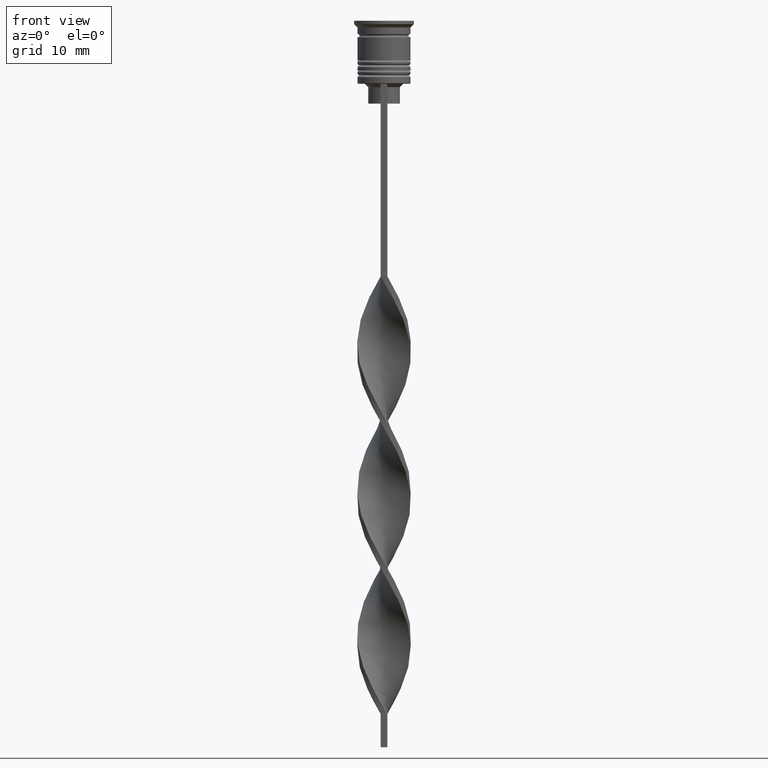
[diagram: clean part render]
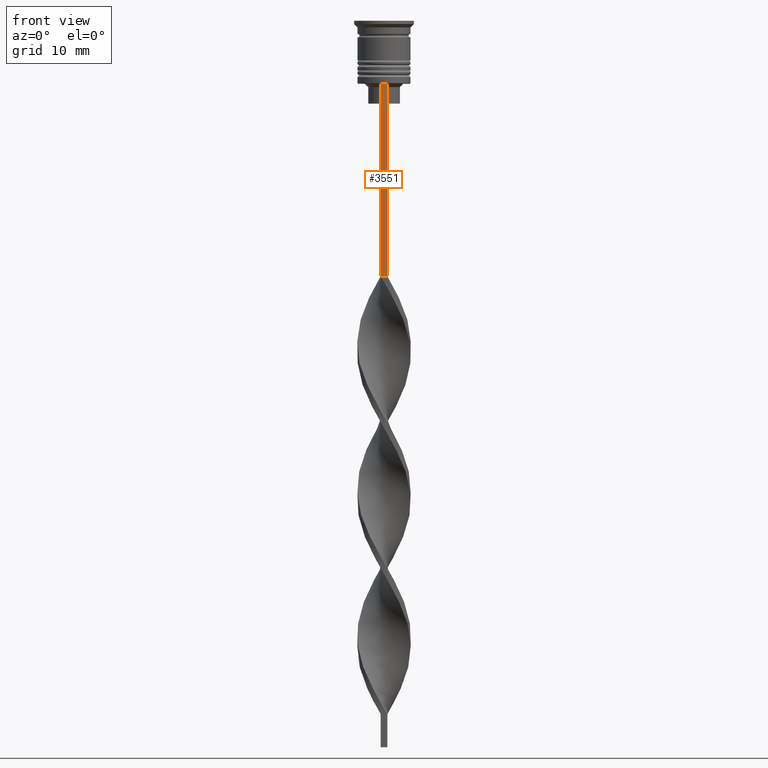
[diagram: same view with one face highlighted and labeled with its STEP entity id]
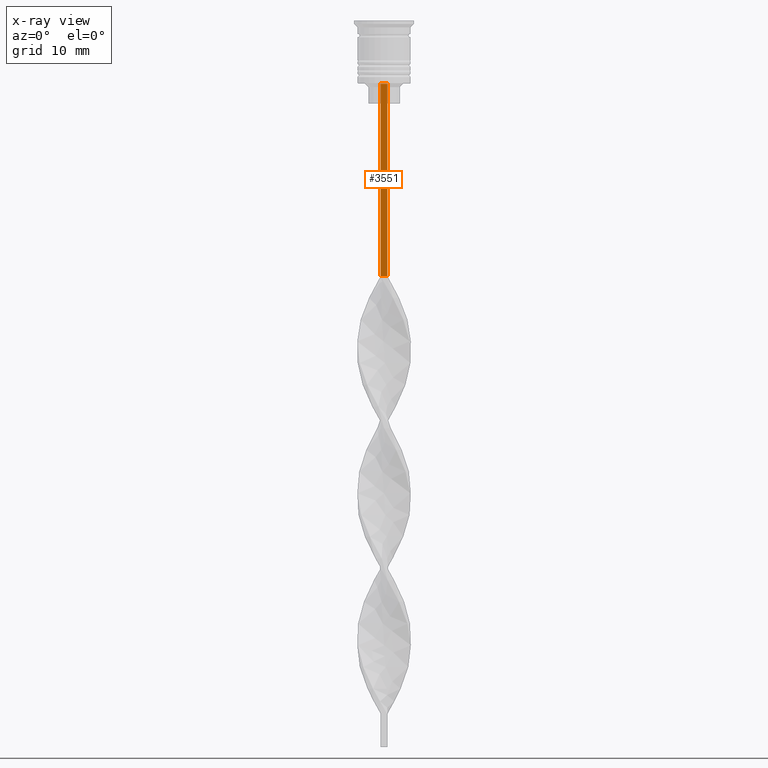
[diagram: x-ray of the same camera — body ghosted, the highlighted face saturated]
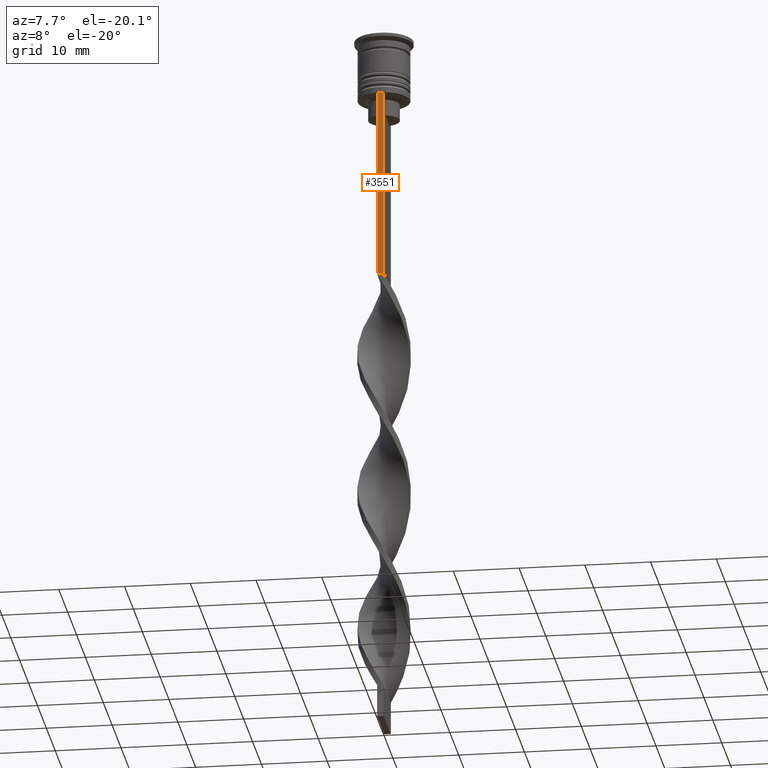
[diagram: same view with one face highlighted and labeled with its STEP entity id]
A machine part, front view. The second image highlights one B-rep face of the part: STEP entity #3551.
The next image is the same camera in x-ray: the body ghosted, the highlighted face saturated — about 0% of this face is hidden behind the body in this view.
A second angle (auxiliary view) of the same face is appended — the face is thin or edge-on in the first view.
In plain terms, the highlighted planar face has unit normal (0, -1, -0).
Its self-contained STEP definition (entity closure, byte-faithful):
#27 = CARTESIAN_POINT ( 'NONE',  ( -0.5000000000000000000, -4.000000000000000000, -9.500000000000000000 ) ) ;
#71 = CARTESIAN_POINT ( 'NONE',  ( -0.5000000000000000000, -4.000000000000000000, -1.437742251701450202 ) ) ;
#112 = EDGE_CURVE ( 'NONE', #362, #3278, #2407, .T. ) ;
#189 = VECTOR ( 'NONE', #3426, 1000.000000000000000 ) ;
#350 = EDGE_CURVE ( 'NONE', #3349, #362, #604, .T. ) ;
#362 = VERTEX_POINT ( 'NONE', #1449 ) ;
#450 = AXIS2_PLACEMENT_3D ( 'NONE', #1119, #2490, #2820 ) ;
#604 = LINE ( 'NONE', #2276, #189 ) ;
#647 = DIRECTION ( 'NONE',  ( 0.000000000000000000, 0.000000000000000000, -1.000000000000000000 ) ) ;
#715 = DIRECTION ( 'NONE',  ( 1.000000000000000000, 0.000000000000000000, 0.000000000000000000 ) ) ;
#1119 = CARTESIAN_POINT ( 'NONE',  ( 0.5000000000000000000, -4.000000000000000000, -1.437742251701450202 ) ) ;
#1125 = VECTOR ( 'NONE', #3553, 1000.000000000000000 ) ;
#1244 = ORIENTED_EDGE ( 'NONE', *, *, #350, .F. ) ;
#1265 = LINE ( 'NONE', #1294, #2948 ) ;
#1294 = CARTESIAN_POINT ( 'NONE',  ( 0.5000000000000000000, -4.000000000000000000, -9.500000000000000000 ) ) ;
#1423 = ORIENTED_EDGE ( 'NONE', *, *, #2357, .F. ) ;
#1449 = CARTESIAN_POINT ( 'NONE',  ( 0.5000000000000000000, -4.000000000000000000, -38.50000000000000000 ) ) ;
#1839 = ORIENTED_EDGE ( 'NONE', *, *, #112, .F. ) ;
#1899 = PLANE ( 'NONE',  #450 ) ;
#1974 = VERTEX_POINT ( 'NONE', #27 ) ;
#2245 = CARTESIAN_POINT ( 'NONE',  ( 0.5000000000000000000, -4.000000000000000000, -9.500000000000000000 ) ) ;
#2276 = CARTESIAN_POINT ( 'NONE',  ( 0.5000000000000000000, -4.000000000000000000, -1.437742251701450202 ) ) ;
#2357 = EDGE_CURVE ( 'NONE', #1974, #3349, #1265, .T. ) ;
#2407 = LINE ( 'NONE', #3588, #1125 ) ;
#2490 = DIRECTION ( 'NONE',  ( 0.000000000000000000, -1.000000000000000000, -0.000000000000000000 ) ) ;
#2556 = EDGE_CURVE ( 'NONE', #1974, #3278, #3117, .T. ) ;
#2693 = EDGE_LOOP ( 'NONE', ( #1423, #3511, #1839, #1244 ) ) ;
#2820 = DIRECTION ( 'NONE',  ( 0.000000000000000000, 0.000000000000000000, -1.000000000000000000 ) ) ;
#2948 = VECTOR ( 'NONE', #715, 1000.000000000000000 ) ;
#3117 = LINE ( 'NONE', #71, #3373 ) ;
#3278 = VERTEX_POINT ( 'NONE', #3490 ) ;
#3343 = FACE_OUTER_BOUND ( 'NONE', #2693, .T. ) ;
#3349 = VERTEX_POINT ( 'NONE', #2245 ) ;
#3373 = VECTOR ( 'NONE', #647, 1000.000000000000000 ) ;
#3426 = DIRECTION ( 'NONE',  ( 0.000000000000000000, 0.000000000000000000, -1.000000000000000000 ) ) ;
#3490 = CARTESIAN_POINT ( 'NONE',  ( -0.5000000000000000000, -4.000000000000000000, -38.50000000000000000 ) ) ;
#3511 = ORIENTED_EDGE ( 'NONE', *, *, #2556, .T. ) ;
#3551 = ADVANCED_FACE ( 'NONE', ( #3343 ), #1899, .T. ) ;
#3553 = DIRECTION ( 'NONE',  ( -1.000000000000000000, 0.000000000000000000, 0.000000000000000000 ) ) ;
#3588 = CARTESIAN_POINT ( 'NONE',  ( 0.5000000000000000000, -4.000000000000000000, -38.50000000000000000 ) ) ;